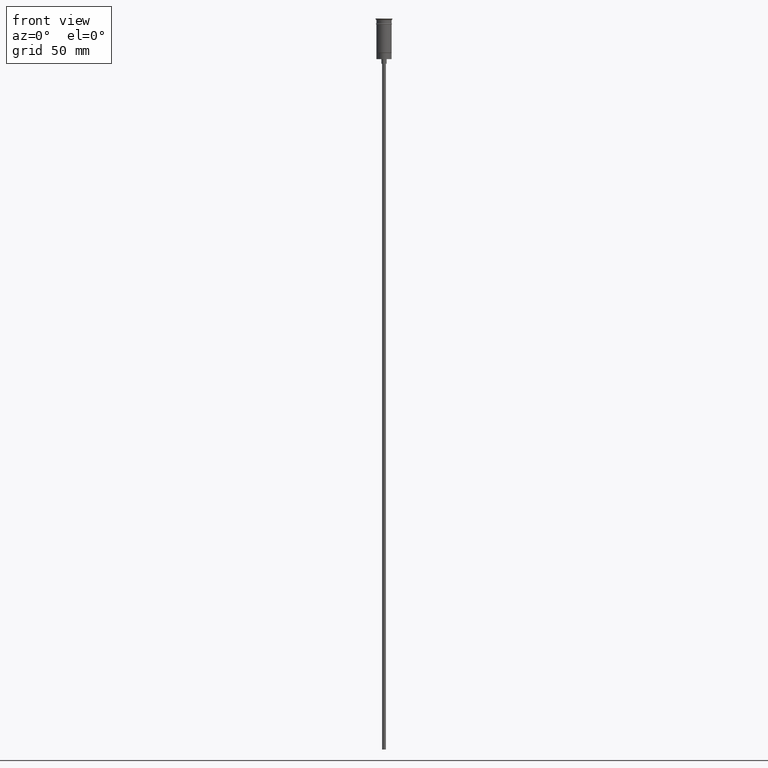
[diagram: clean part render]
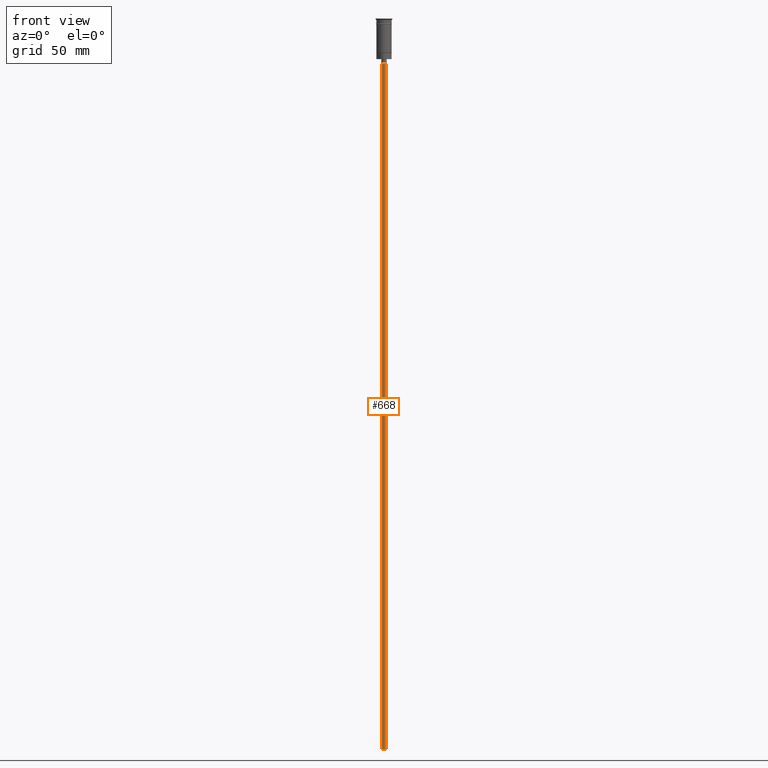
[diagram: same view with one face highlighted and labeled with its STEP entity id]
A machine part, front view. The second image highlights one B-rep face of the part: STEP entity #668.
In plain terms, the highlighted cylindrical surface (edge-blend (fillet) strip) has radius 1.25 mm, axis along (-0, -0, 1).
Its self-contained STEP definition (entity closure, byte-faithful):
#2 = VECTOR ( 'NONE', #1293, 1000.000000000000000 ) ;
#29 = EDGE_CURVE ( 'NONE', #564, #1270, #456, .T. ) ;
#56 = VERTEX_POINT ( 'NONE', #1383 ) ;
#91 = EDGE_CURVE ( 'NONE', #56, #1270, #279, .T. ) ;
#108 = AXIS2_PLACEMENT_3D ( 'NONE', #161, #793, #1143 ) ;
#138 = CARTESIAN_POINT ( 'NONE',  ( 0.000000000000000000, 0.000000000000000000, -29.50000000000000000 ) ) ;
#156 = CARTESIAN_POINT ( 'NONE',  ( -1.250000000000000000, 1.530808498934191571E-16, -476.5000000000000568 ) ) ;
#161 = CARTESIAN_POINT ( 'NONE',  ( 0.000000000000000000, 0.000000000000000000, -476.5000000000000568 ) ) ;
#219 = CYLINDRICAL_SURFACE ( 'NONE', #1008, 1.250000000000000000 ) ;
#279 = LINE ( 'NONE', #156, #584 ) ;
#365 = EDGE_LOOP ( 'NONE', ( #1407, #1198, #453, #1354 ) ) ;
#386 = DIRECTION ( 'NONE',  ( -1.000000000000000000, 0.000000000000000000, 0.000000000000000000 ) ) ;
#453 = ORIENTED_EDGE ( 'NONE', *, *, #1181, .T. ) ;
#456 = CIRCLE ( 'NONE', #893, 1.250000000000000000 ) ;
#512 = CARTESIAN_POINT ( 'NONE',  ( 1.250000000000000000, 0.000000000000000000, -29.50000000000000000 ) ) ;
#513 = DIRECTION ( 'NONE',  ( 0.000000000000000000, 0.000000000000000000, -1.000000000000000000 ) ) ;
#564 = VERTEX_POINT ( 'NONE', #512 ) ;
#584 = VECTOR ( 'NONE', #1147, 1000.000000000000000 ) ;
#668 = ADVANCED_FACE ( 'NONE', ( #944 ), #219, .T. ) ;
#734 = VERTEX_POINT ( 'NONE', #1464 ) ;
#793 = DIRECTION ( 'NONE',  ( 0.000000000000000000, 0.000000000000000000, -1.000000000000000000 ) ) ;
#893 = AXIS2_PLACEMENT_3D ( 'NONE', #138, #513, #386 ) ;
#944 = FACE_OUTER_BOUND ( 'NONE', #365, .T. ) ;
#1001 = EDGE_CURVE ( 'NONE', #734, #56, #1269, .T. ) ;
#1008 = AXIS2_PLACEMENT_3D ( 'NONE', #1447, #1439, #1195 ) ;
#1048 = LINE ( 'NONE', #1445, #2 ) ;
#1143 = DIRECTION ( 'NONE',  ( -1.000000000000000000, 0.000000000000000000, 0.000000000000000000 ) ) ;
#1147 = DIRECTION ( 'NONE',  ( -0.000000000000000000, -0.000000000000000000, 1.000000000000000000 ) ) ;
#1181 = EDGE_CURVE ( 'NONE', #734, #564, #1048, .T. ) ;
#1195 = DIRECTION ( 'NONE',  ( 1.000000000000000000, 0.000000000000000000, 0.000000000000000000 ) ) ;
#1198 = ORIENTED_EDGE ( 'NONE', *, *, #1001, .F. ) ;
#1239 = CARTESIAN_POINT ( 'NONE',  ( -1.250000000000000000, 1.530808498934191571E-16, -29.50000000000000000 ) ) ;
#1269 = CIRCLE ( 'NONE', #108, 1.250000000000000000 ) ;
#1270 = VERTEX_POINT ( 'NONE', #1239 ) ;
#1293 = DIRECTION ( 'NONE',  ( -0.000000000000000000, -0.000000000000000000, 1.000000000000000000 ) ) ;
#1354 = ORIENTED_EDGE ( 'NONE', *, *, #29, .T. ) ;
#1383 = CARTESIAN_POINT ( 'NONE',  ( -1.250000000000000000, 1.530808498934191571E-16, -476.5000000000000568 ) ) ;
#1407 = ORIENTED_EDGE ( 'NONE', *, *, #91, .F. ) ;
#1439 = DIRECTION ( 'NONE',  ( -0.000000000000000000, -0.000000000000000000, 1.000000000000000000 ) ) ;
#1445 = CARTESIAN_POINT ( 'NONE',  ( 1.250000000000000000, 0.000000000000000000, -476.5000000000000568 ) ) ;
#1447 = CARTESIAN_POINT ( 'NONE',  ( 0.000000000000000000, 0.000000000000000000, -476.5000000000000568 ) ) ;
#1464 = CARTESIAN_POINT ( 'NONE',  ( 1.250000000000000000, 0.000000000000000000, -476.5000000000000568 ) ) ;